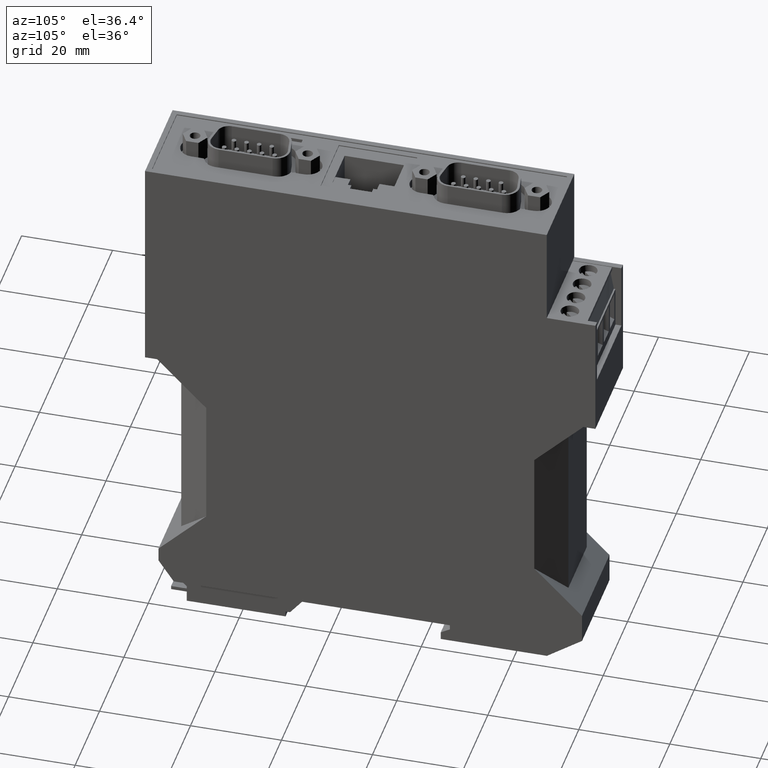
[diagram: clean part render]
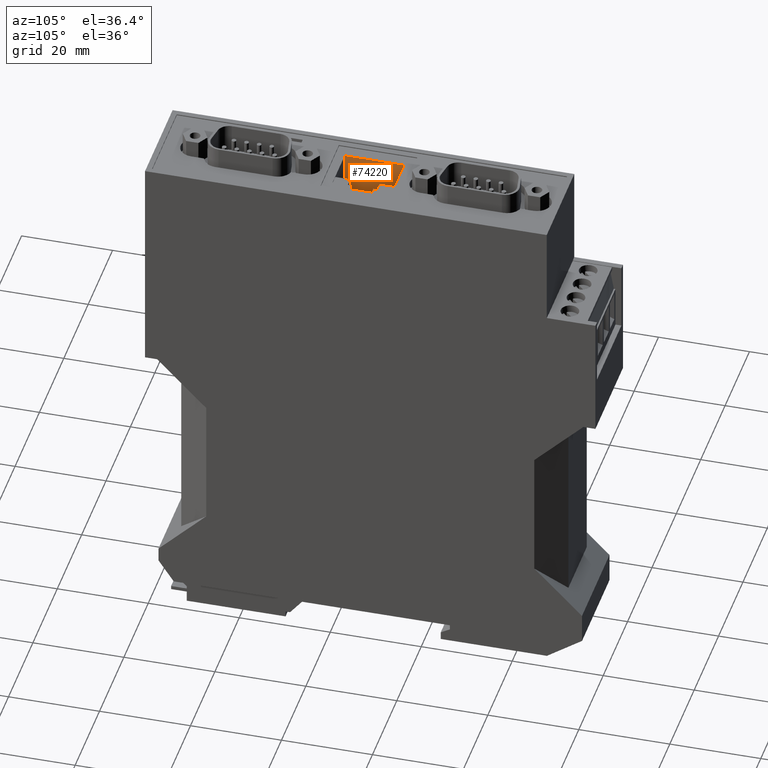
[diagram: same view with one face highlighted and labeled with its STEP entity id]
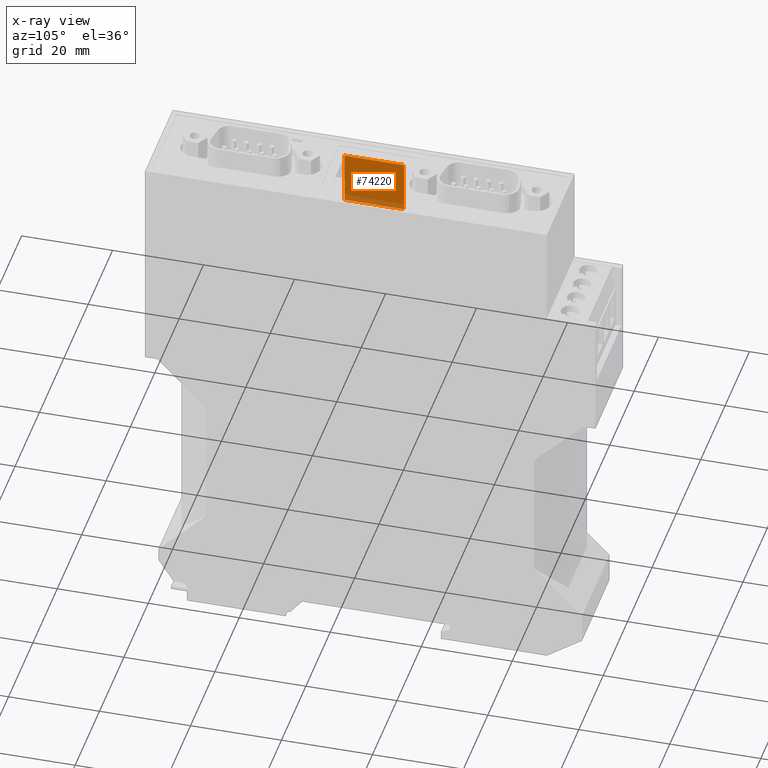
[diagram: x-ray of the same camera — body ghosted, the highlighted face saturated]
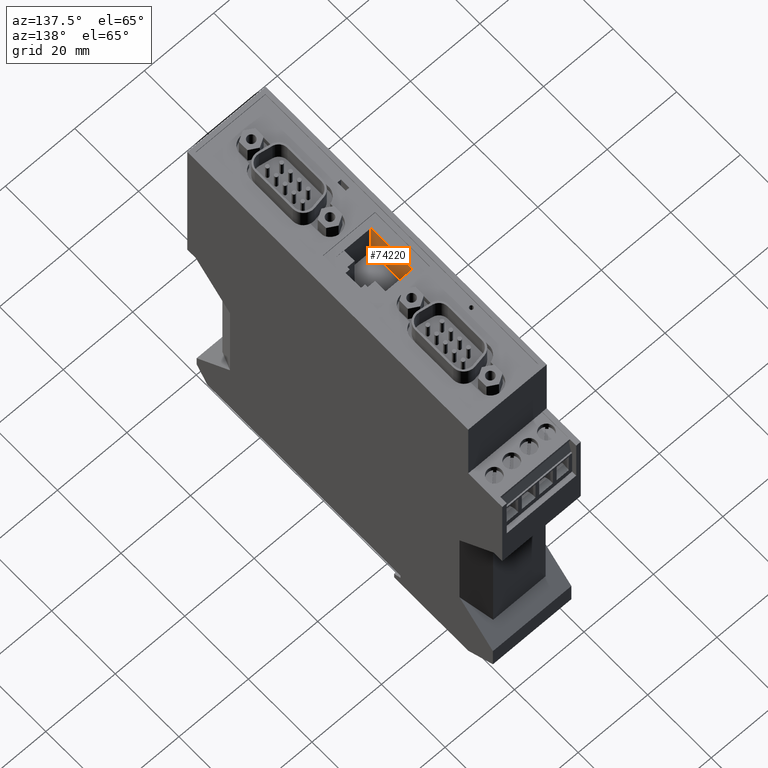
[diagram: same view with one face highlighted and labeled with its STEP entity id]
A machine part, auxiliary view. The second image highlights one B-rep face of the part: STEP entity #74220.
The next image is the same camera in x-ray: the body ghosted, the highlighted face saturated — about 12% of this face is hidden behind the body in this view.
A second angle (auxiliary view) of the same face is appended — the face is thin or edge-on in the first view.
In plain terms, the highlighted planar face has unit normal (1, 0, -0).
Its self-contained STEP definition (entity closure, byte-faithful):
#37610=CARTESIAN_POINT('',(-27.6233143952817,94.9427999999021,
5.7966003541443));
#37620=VERTEX_POINT('',#37610);
#37650=CARTESIAN_POINT('',(-82.9187143953075,94.9427999999032,
5.79660035414515));
#37660=DIRECTION('',(-1.,1.88186390340675E-14,1.52810122827484E-14));
#37670=VECTOR('',#37660,1.);
#37680=LINE('',#37650,#37670);
#37690=CARTESIAN_POINT('',(-14.5833143952817,94.9427999999019,
5.7966003541441));
#37700=VERTEX_POINT('',#37690);
#37710=EDGE_CURVE('',#37700,#37620,#37680,.T.);
#73920=CARTESIAN_POINT('',(-27.6233143952903,106.600000000001,
5.7966003541443));
#73930=DIRECTION('',(1.52810122827484E-14,-8.65037891834471E-25,1.));
#73940=DIRECTION('',(-1.,-7.38964445188328E-13,1.52810122827484E-14));
#73950=AXIS2_PLACEMENT_3D('',#73920,#73930,#73940);
#73960=PLANE('',#73950);
#73970=CARTESIAN_POINT('',(-14.5833143952293,24.,5.7966003541441));
#73980=DIRECTION('',(7.38964445188328E-13,-1.,-8.76355045940885E-25));
#73990=VECTOR('',#73980,1.);
#74000=LINE('',#73970,#73990);
#74010=CARTESIAN_POINT('',(-14.5833143952903,106.600000000011,
5.7966003541441));
#74020=VERTEX_POINT('',#74010);
#74030=EDGE_CURVE('',#74020,#37700,#74000,.T.);
#74040=ORIENTED_EDGE('',*,*,#74030,.F.);
#74050=ORIENTED_EDGE('',*,*,#37710,.F.);
#74060=CARTESIAN_POINT('',(-27.6233143952293,24.,5.7966003541443));
#74070=DIRECTION('',(7.38964445188328E-13,-1.,-8.76355045940885E-25));
#74080=VECTOR('',#74070,1.);
#74090=LINE('',#74060,#74080);
#74100=CARTESIAN_POINT('',(-27.6233143952903,106.600000000001,
5.7966003541443));
#74110=VERTEX_POINT('',#74100);
#74120=EDGE_CURVE('',#74110,#37620,#74090,.T.);
#74130=ORIENTED_EDGE('',*,*,#74120,.T.);
#74140=CARTESIAN_POINT('',(-82.9187143953075,106.59999999996,
5.79660035414515));
#74150=DIRECTION('',(-1.,-7.38964445188328E-13,1.52810122827484E-14));
#74160=VECTOR('',#74150,1.);
#74170=LINE('',#74140,#74160);
#74180=EDGE_CURVE('',#74020,#74110,#74170,.T.);
#74190=ORIENTED_EDGE('',*,*,#74180,.T.);
#74200=EDGE_LOOP('',(#74190,#74130,#74050,#74040));
#74210=FACE_OUTER_BOUND('',#74200,.T.);
#74220=ADVANCED_FACE('',(#74210),#73960,.T.);